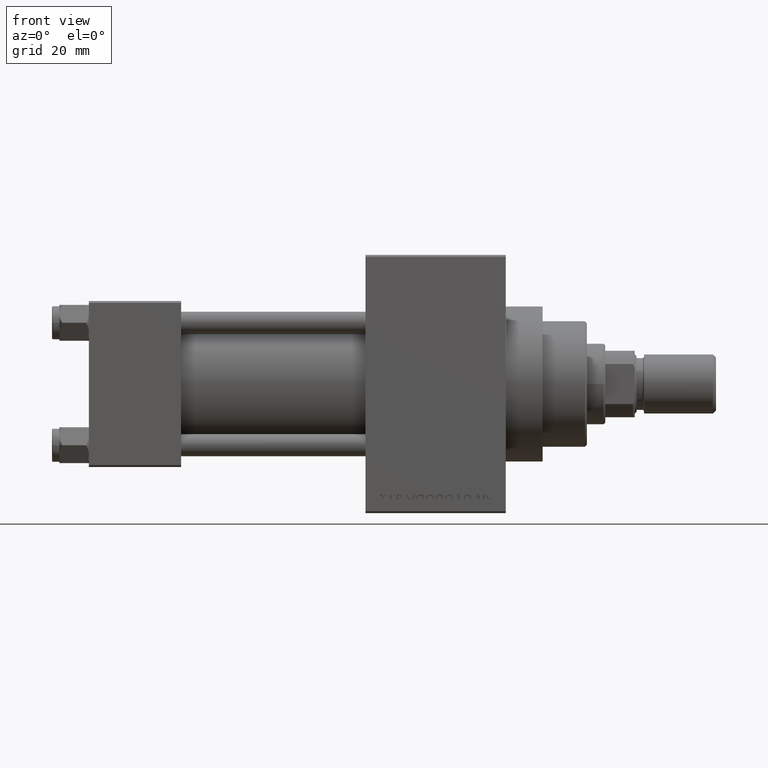
[diagram: clean part render]
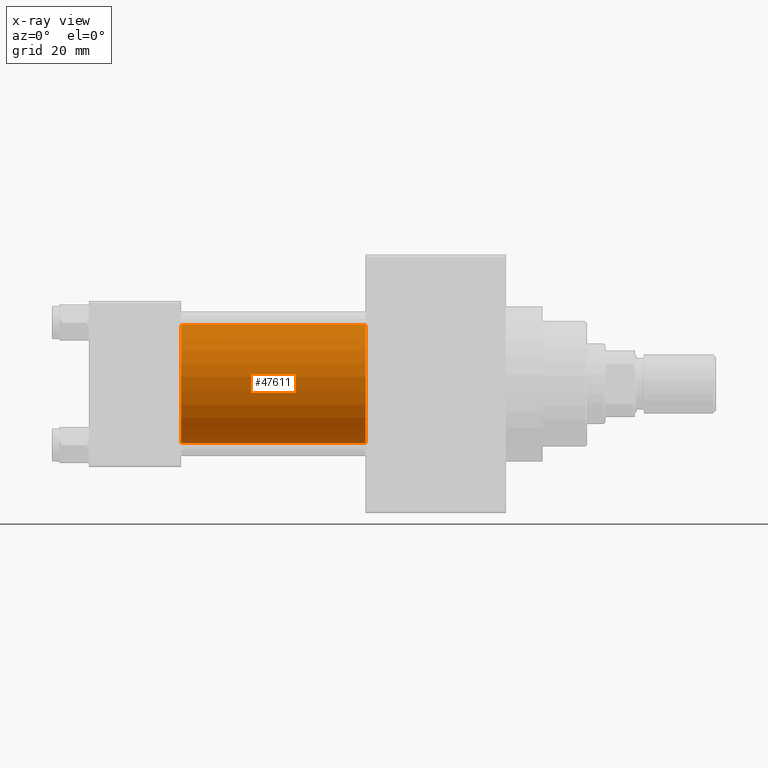
[diagram: x-ray — body ghosted, one internal face saturated and labeled with its STEP entity id]
A machine part, front view, then the same camera in x-ray: the body is ghosted and one INTERNAL B-rep face — a face not visible from any outside direction — is saturated and labeled: STEP entity #47611.
In plain terms, the highlighted cylindrical surface (partial cylindrical patch) has radius 16 mm, axis along (-1, -0, -0).
Its self-contained STEP definition (entity closure, byte-faithful):
#166 = DIRECTION ( 'NONE',  ( 1.000000000000000000, 0.000000000000000000, 0.000000000000000000 ) ) ;
#2752 = VERTEX_POINT ( 'NONE', #17796 ) ;
#4925 = ORIENTED_EDGE ( 'NONE', *, *, #24259, .T. ) ;
#6103 = LINE ( 'NONE', #46784, #27426 ) ;
#7269 = ORIENTED_EDGE ( 'NONE', *, *, #35161, .F. ) ;
#8122 = VERTEX_POINT ( 'NONE', #9283 ) ;
#8560 = DIRECTION ( 'NONE',  ( 0.000000000000000000, 0.000000000000000000, 1.000000000000000000 ) ) ;
#8671 = VECTOR ( 'NONE', #34426, 1000.000000000000000 ) ;
#9283 = CARTESIAN_POINT ( 'NONE',  ( 75.00000000000001421, -2.602085213965210642E-15, 16.00000000000000000 ) ) ;
#10879 = EDGE_LOOP ( 'NONE', ( #4925, #38460, #20087, #7269 ) ) ;
#13349 = CIRCLE ( 'NONE', #15674, 16.00000000000000000 ) ;
#13611 = DIRECTION ( 'NONE',  ( 1.000000000000000000, 0.000000000000000000, 0.000000000000000000 ) ) ;
#15674 = AXIS2_PLACEMENT_3D ( 'NONE', #36966, #166, #36498 ) ;
#16041 = CYLINDRICAL_SURFACE ( 'NONE', #22832, 16.00000000000000000 ) ;
#17796 = CARTESIAN_POINT ( 'NONE',  ( 25.00000000000000000, -2.602085213965210642E-15, 16.00000000000000000 ) ) ;
#20087 = ORIENTED_EDGE ( 'NONE', *, *, #40467, .F. ) ;
#20345 = FACE_OUTER_BOUND ( 'NONE', #10879, .T. ) ;
#21749 = EDGE_CURVE ( 'NONE', #40397, #43444, #23123, .T. ) ;
#22832 = AXIS2_PLACEMENT_3D ( 'NONE', #27791, #46090, #8560 ) ;
#23123 = LINE ( 'NONE', #24289, #8671 ) ;
#23948 = DIRECTION ( 'NONE',  ( -1.000000000000000000, -0.000000000000000000, -0.000000000000000000 ) ) ;
#24259 = EDGE_CURVE ( 'NONE', #8122, #40397, #13349, .T. ) ;
#24289 = CARTESIAN_POINT ( 'NONE',  ( 75.00000000000001421, -6.426503353294456087E-16, -16.00000000000000000 ) ) ;
#25170 = AXIS2_PLACEMENT_3D ( 'NONE', #31659, #13611, #46832 ) ;
#27426 = VECTOR ( 'NONE', #23948, 1000.000000000000000 ) ;
#27791 = CARTESIAN_POINT ( 'NONE',  ( 75.00000000000001421, -2.602085213965210642E-15, 0.000000000000000000 ) ) ;
#31659 = CARTESIAN_POINT ( 'NONE',  ( 25.00000000000000000, -2.602085213965210642E-15, 0.000000000000000000 ) ) ;
#32852 = CIRCLE ( 'NONE', #25170, 16.00000000000000000 ) ;
#34426 = DIRECTION ( 'NONE',  ( -1.000000000000000000, -0.000000000000000000, -0.000000000000000000 ) ) ;
#35161 = EDGE_CURVE ( 'NONE', #8122, #2752, #6103, .T. ) ;
#36498 = DIRECTION ( 'NONE',  ( 0.000000000000000000, 0.000000000000000000, -1.000000000000000000 ) ) ;
#36966 = CARTESIAN_POINT ( 'NONE',  ( 75.00000000000001421, -2.602085213965210642E-15, 0.000000000000000000 ) ) ;
#38460 = ORIENTED_EDGE ( 'NONE', *, *, #21749, .T. ) ;
#40397 = VERTEX_POINT ( 'NONE', #42635 ) ;
#40467 = EDGE_CURVE ( 'NONE', #2752, #43444, #32852, .T. ) ;
#42635 = CARTESIAN_POINT ( 'NONE',  ( 75.00000000000001421, -6.426503353294456087E-16, -16.00000000000000000 ) ) ;
#43444 = VERTEX_POINT ( 'NONE', #43832 ) ;
#43832 = CARTESIAN_POINT ( 'NONE',  ( 25.00000000000000000, -6.426503353294456087E-16, -16.00000000000000000 ) ) ;
#46090 = DIRECTION ( 'NONE',  ( -1.000000000000000000, -0.000000000000000000, -0.000000000000000000 ) ) ;
#46784 = CARTESIAN_POINT ( 'NONE',  ( 75.00000000000001421, -2.602085213965210642E-15, 16.00000000000000000 ) ) ;
#46832 = DIRECTION ( 'NONE',  ( 0.000000000000000000, 0.000000000000000000, -1.000000000000000000 ) ) ;
#47611 = ADVANCED_FACE ( 'NONE', ( #20345 ), #16041, .F. ) ;